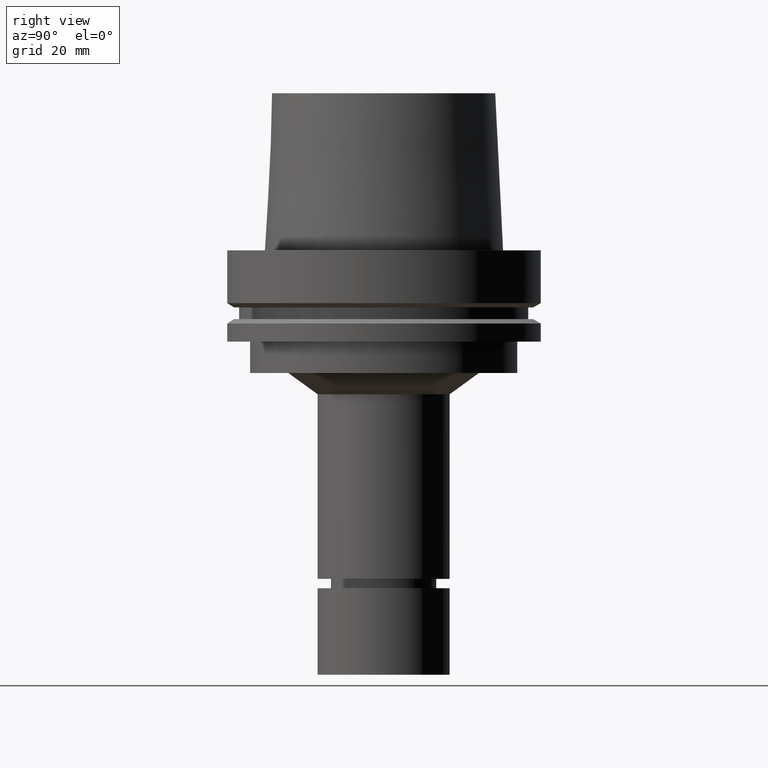
[diagram: clean part render]
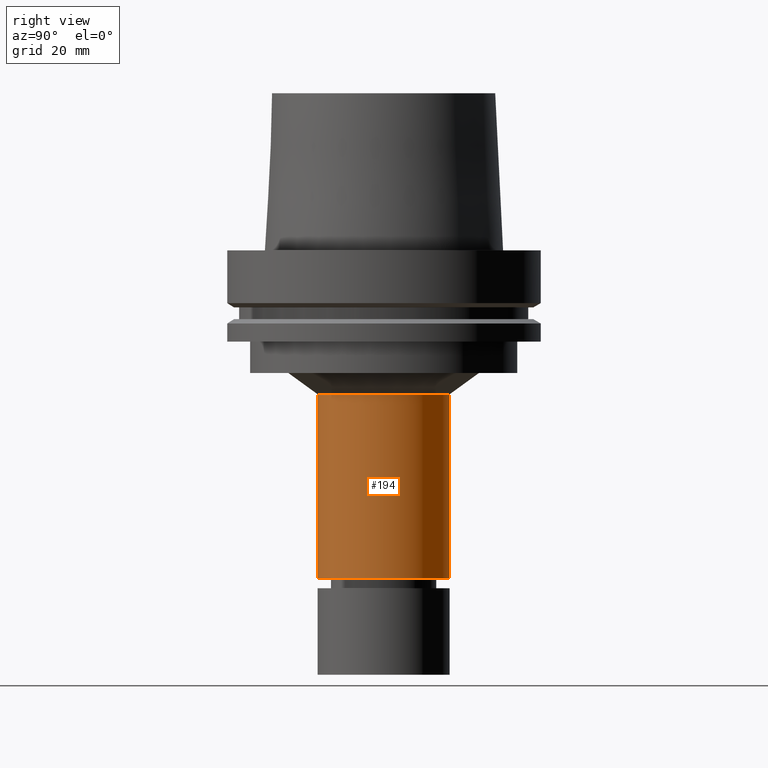
[diagram: same view with one face highlighted and labeled with its STEP entity id]
A machine part, right view. The second image highlights one B-rep face of the part: STEP entity #194.
In plain terms, the highlighted cylindrical surface (bore or boss wall) has radius 21 mm, axis along (0, 0, -1).
Its self-contained STEP definition (entity closure, byte-faithful):
#146=EDGE_CURVE('Unnamed[1]',#324,#324,#325,.T.);
#158=EDGE_CURVE('Unnamed[1]',#342,#342,#343,.T.);
#194=ADVANCED_FACE('Unnamed[1]',(#395,#396),#397,.T.);
#324=VERTEX_POINT('',#548);
#325=CIRCLE('',#549,20.9999999999999);
#342=VERTEX_POINT('',#571);
#343=CIRCLE('',#572,21.0000000000002);
#395=FACE_BOUND('',#637,.T.);
#396=FACE_BOUND('',#638,.T.);
#397=CYLINDRICAL_SURFACE('',#639,21.0);
#548=CARTESIAN_POINT('',(2.80227603538635E-015,20.9999999999999,-45.7646406676179));
#549=AXIS2_PLACEMENT_3D('',#769,#770,#771);
#571=CARTESIAN_POINT('',(6.39877952554491E-015,21.0000000000002,-104.5));
#572=AXIS2_PLACEMENT_3D('',#789,#790,#791);
#637=EDGE_LOOP('',(#846));
#638=EDGE_LOOP('',(#847));
#639=AXIS2_PLACEMENT_3D('',#848,#849,#850);
#769=CARTESIAN_POINT('',(2.80227603538635E-015,5.60455207077271E-015,-45.7646406676179));
#770=DIRECTION('',(6.12323399573677E-017,1.22464679914771E-016,-1.0));
#771=DIRECTION('',(-1.23259516440784E-032,1.0,1.22464679914771E-016));
#789=CARTESIAN_POINT('',(6.39877952554491E-015,1.27975590510898E-014,-104.5));
#790=DIRECTION('',(6.12323399573677E-017,1.22464679914769E-016,-1.0));
#791=DIRECTION('',(-1.23259516440782E-032,1.0,1.22464679914769E-016));
#846=ORIENTED_EDGE('',*,*,#158,.F.);
#847=ORIENTED_EDGE('',*,*,#146,.T.);
#848=CARTESIAN_POINT('',(4.60052778046563E-015,9.20105556093127E-015,-75.1323203338089));
#849=DIRECTION('',(6.12323399573677E-017,1.2246467991477E-016,-1.0));
#850=DIRECTION('',(-1.23259516440783E-032,1.0,1.2246467991477E-016));